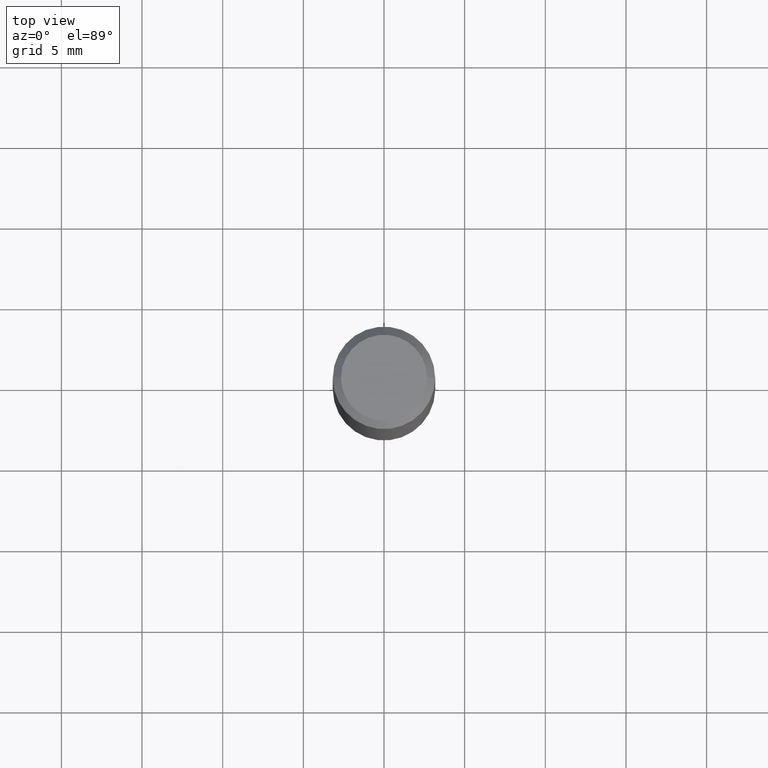
[diagram: clean part render]
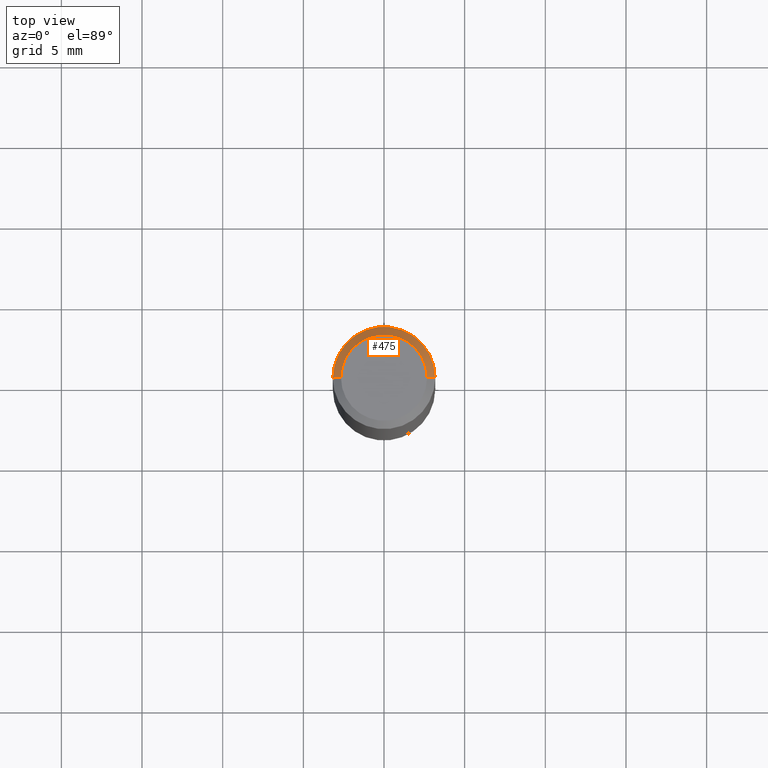
[diagram: same view with one face highlighted and labeled with its STEP entity id]
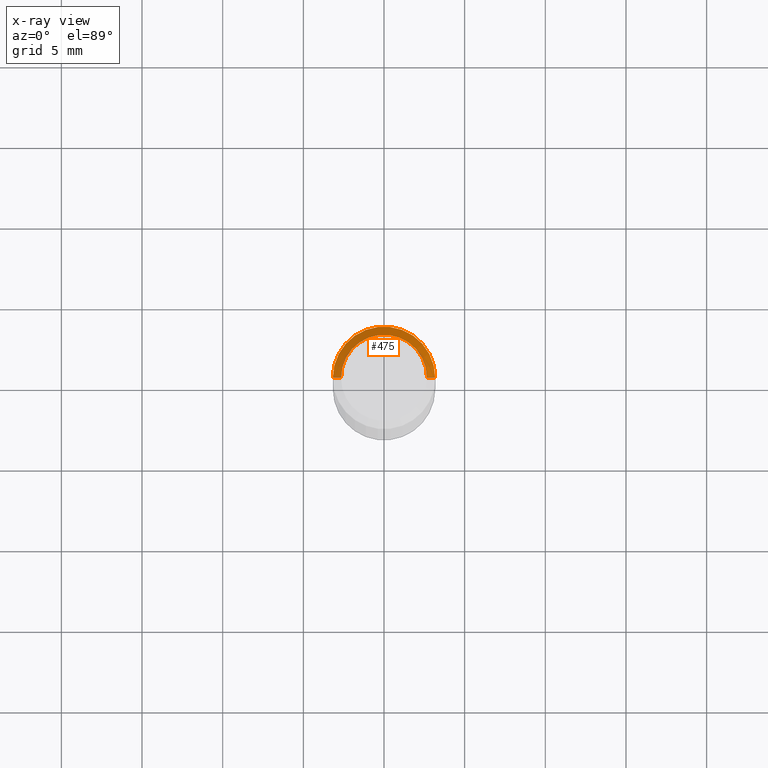
[diagram: x-ray of the same camera — body ghosted, the highlighted face saturated]
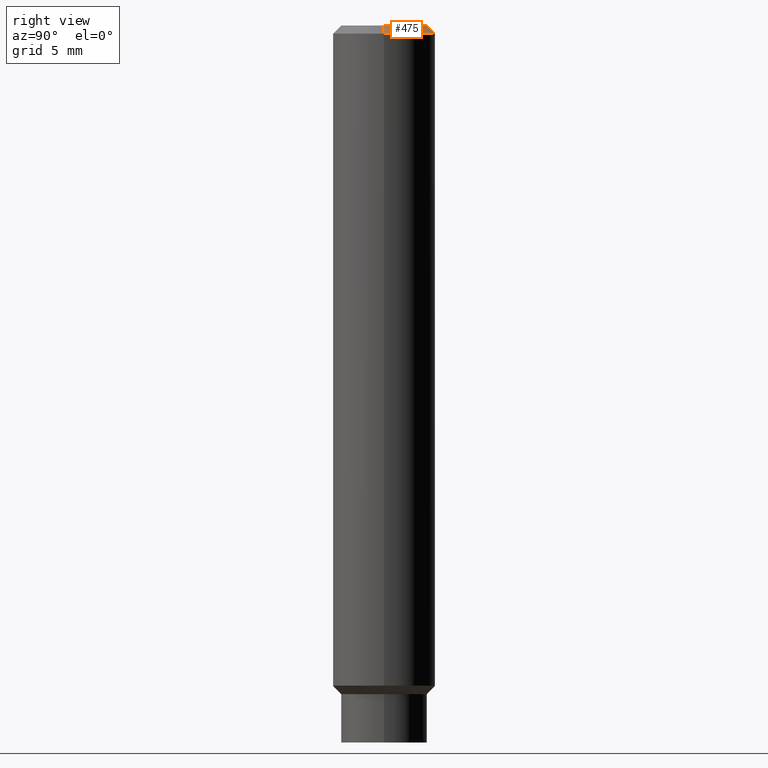
[diagram: same view with one face highlighted and labeled with its STEP entity id]
A machine part, top view. The second image highlights one B-rep face of the part: STEP entity #475.
The next image is the same camera in x-ray: the body ghosted, the highlighted face saturated — about 0% of this face is hidden behind the body in this view.
A second angle (right view) of the same face is appended — the face is thin or edge-on in the first view.
In plain terms, the highlighted conical surface has half-angle 45 deg.
Its self-contained STEP definition (entity closure, byte-faithful):
#3 = CARTESIAN_POINT ( 'NONE',  ( 4.890937612370288047E-31, -6.982962677686311331E-17, -0.02000000000000005940 ) ) ;
#57 = EDGE_LOOP ( 'NONE', ( #343, #202, #486, #257 ) ) ;
#60 = EDGE_CURVE ( 'NONE', #130, #627, #324, .T. ) ;
#77 = CARTESIAN_POINT ( 'NONE',  ( 0.000000000000000000, 0.000000000000000000, 0.000000000000000000 ) ) ;
#78 = DIRECTION ( 'NONE',  ( 2.445468806185136597E-29, -3.491481338843145583E-15, -1.000000000000000000 ) ) ;
#86 = CIRCLE ( 'NONE', #388, 0.1049999999999999545 ) ;
#97 = VERTEX_POINT ( 'NONE', #160 ) ;
#109 = CARTESIAN_POINT ( 'NONE',  ( 0.1250000000000000000, -9.273918764983045463E-16, -0.02000000000000005940 ) ) ;
#130 = VERTEX_POINT ( 'NONE', #109 ) ;
#132 = DIRECTION ( 'NONE',  ( -1.000000000000000000, 6.982962677686266711E-15, 0.000000000000000000 ) ) ;
#160 = CARTESIAN_POINT ( 'NONE',  ( -0.1049999999999999545, 7.681258945454889832E-16, -5.249639473182164475E-30 ) ) ;
#180 = FACE_OUTER_BOUND ( 'NONE', #57, .T. ) ;
#183 = DIRECTION ( 'NONE',  ( 0.7071067811865472397, -7.319954787623254468E-15, -0.7071067811865477948 ) ) ;
#202 = ORIENTED_EDGE ( 'NONE', *, *, #314, .T. ) ;
#221 = LINE ( 'NONE', #512, #409 ) ;
#222 = VECTOR ( 'NONE', #183, 39.37007874015748143 ) ;
#257 = ORIENTED_EDGE ( 'NONE', *, *, #371, .F. ) ;
#266 = EDGE_CURVE ( 'NONE', #542, #97, #86, .T. ) ;
#268 = DIRECTION ( 'NONE',  ( 1.000000000000000000, -6.982962677686265922E-15, 4.876176775795935793E-29 ) ) ;
#279 = CARTESIAN_POINT ( 'NONE',  ( 0.1250000000000000000, -9.273918764983045463E-16, -0.02000000000000005940 ) ) ;
#314 = EDGE_CURVE ( 'NONE', #542, #130, #317, .T. ) ;
#317 = LINE ( 'NONE', #279, #222 ) ;
#324 = CIRCLE ( 'NONE', #431, 0.1250000000000000000 ) ;
#343 = ORIENTED_EDGE ( 'NONE', *, *, #266, .F. ) ;
#352 = CARTESIAN_POINT ( 'NONE',  ( -0.1250000000000000000, 8.030407079339202378E-16, -0.02000000000000005940 ) ) ;
#371 = EDGE_CURVE ( 'NONE', #97, #627, #221, .T. ) ;
#388 = AXIS2_PLACEMENT_3D ( 'NONE', #77, #573, #268 ) ;
#409 = VECTOR ( 'NONE', #424, 39.37007874015748143 ) ;
#424 = DIRECTION ( 'NONE',  ( -0.7071067811865472397, 2.468850131082253905E-15, -0.7071067811865477948 ) ) ;
#431 = AXIS2_PLACEMENT_3D ( 'NONE', #3, #586, #540 ) ;
#445 = CARTESIAN_POINT ( 'NONE',  ( 0.1049999999999999545, -8.238720831321574672E-16, 5.444276250344148664E-30 ) ) ;
#475 = ADVANCED_FACE ( 'NONE', ( #180 ), #479, .T. ) ;
#479 = CONICAL_SURFACE ( 'NONE', #639, 0.1250000000000000000, 0.7853981633974479459 ) ;
#486 = ORIENTED_EDGE ( 'NONE', *, *, #60, .T. ) ;
#512 = CARTESIAN_POINT ( 'NONE',  ( -0.1250000000000000000, 8.030407079339202378E-16, -0.02000000000000005940 ) ) ;
#540 = DIRECTION ( 'NONE',  ( 1.000000000000000000, -6.982962677686266711E-15, 0.000000000000000000 ) ) ;
#542 = VERTEX_POINT ( 'NONE', #445 ) ;
#567 = CARTESIAN_POINT ( 'NONE',  ( 4.890937612370288047E-31, -6.982962677686311331E-17, -0.02000000000000005940 ) ) ;
#573 = DIRECTION ( 'NONE',  ( -2.445468806185136597E-29, 3.491481338843145583E-15, 1.000000000000000000 ) ) ;
#586 = DIRECTION ( 'NONE',  ( -2.445468806185136597E-29, 3.491481338843145583E-15, 1.000000000000000000 ) ) ;
#627 = VERTEX_POINT ( 'NONE', #352 ) ;
#639 = AXIS2_PLACEMENT_3D ( 'NONE', #567, #78, #132 ) ;